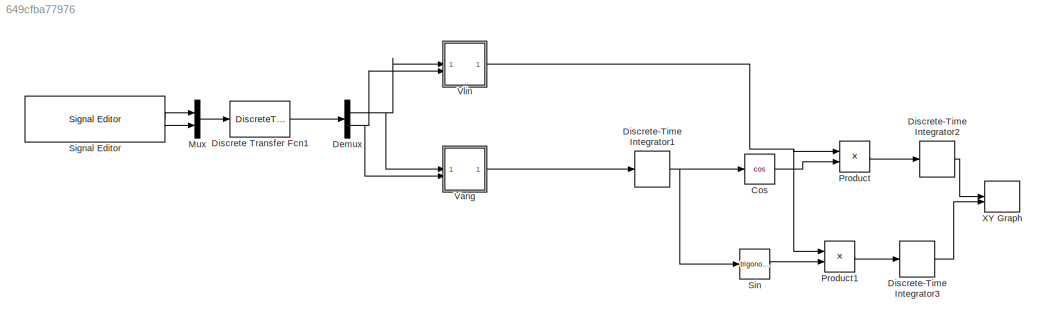
MODEL slx_649cfba77976
KIND model
CONFIG AbsTol = auto
CONFIG EnableMultiTasking = off
CONFIG FixedStep = auto
CONFIG MaxStep = auto
CONFIG MinStep = auto
CONFIG RelTol = 1e-3
CONFIG SampleTimeConstraint = Unconstrained
CONFIG SolverName = VariableStepAuto
CONFIG StartTime = 0.0
CONFIG StopTime = 18
BLOCK [Trigonometry] Cos
  Operator = cos
BLOCK [Demux] Demux
  Outputs = 2
BLOCK [DiscreteTransferFcn] Discrete Transfer Fcn1
  Denominator = Gz.den{1}
  InputPortMap = u0
  Numerator = Gz.num{1}
BLOCK [DiscreteIntegrator] Discrete-Time Integrator1
  ICPrevOutput = DiscIntNeverNeededParam
  ICPrevScaledInput = DiscIntNeverNeededParam
  InitialConditionSetting = Auto
  SampleTime = 0.025
BLOCK [DiscreteIntegrator] Discrete-Time Integrator2
  ICPrevOutput = DiscIntNeverNeededParam
  ICPrevScaledInput = DiscIntNeverNeededParam
  InitialConditionSetting = Auto
  SampleTime = 0.025
BLOCK [DiscreteIntegrator] Discrete-Time Integrator3
  ICPrevOutput = DiscIntNeverNeededParam
  ICPrevScaledInput = DiscIntNeverNeededParam
  InitialConditionSetting = Auto
  SampleTime = 0.025
BLOCK [Mux] Mux
  DisplayOption = bar
  Inputs = 2
BLOCK [Product] Product
BLOCK [Product] Product1
BLOCK [Reference] Signal Editor  REF=SignalEditorBlockLib/Signal Editor
  LibrarySourceBlock = simulink/Sources/Signal Editor
  SourceBlock = SignalEditorBlockLib/Signal Editor
  SourceType = SignalEditor
  UserDataPersistent = on
BLOCK [Trigonometry] Sin
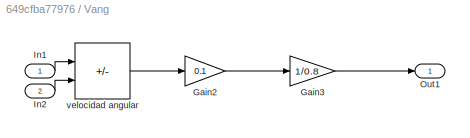
BLOCK [SubSystem] Vang
BLOCK [Gain] Vang/Gain2
  Gain = 0.1
BLOCK [Gain] Vang/Gain3
  Gain = 1/0.8
BLOCK [Inport] Vang/In1
BLOCK [Inport] Vang/In2
  Port = 2
BLOCK [Outport] Vang/Out1
BLOCK [Sum] Vang/velocidad angular
  IconShape = rectangular
  Inputs = |+-
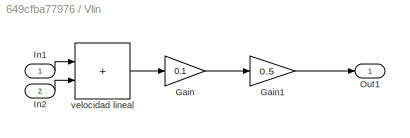
BLOCK [SubSystem] Vlin
BLOCK [Gain] Vlin/Gain
  Gain = 0.1
BLOCK [Gain] Vlin/Gain1
  Gain = 0.5
BLOCK [Inport] Vlin/In1
BLOCK [Inport] Vlin/In2
  Port = 2
BLOCK [Outport] Vlin/Out1
BLOCK [Sum] Vlin/velocidad lineal
  IconShape = rectangular
  Inputs = |++
BLOCK [Record] XY Graph
  CompatibilityTag = XY
  FileSettingsInternal = {"entries":[{"content":{"excelSettings":{"content":{},"type":"Streamout.ExcelSettings"}},"type":"Streamout.FileSettingStorage","uuid":""}],"packageUris":["http:\/\/schema.mathworks.com\/mf0\/streamout_blocks\/R2020a"],"version":"1.0"}
  Layout = [1 1]
  SignalsInternal = {"entries":[{"content":{"signals":[{"content":{"blockPath":[],"dimensions":[1],"domain":"","lineColor":"#ff6929","plots":[1],"port":1,"sid":[""],"signalID":356,"signalName":"Discrete-Time\nIntegrator2"},"type":"RecordBlkView.Signal","uuid":""},{"content":{"blockPath":[],"dimensions":[1],"domain":"","lineColor":"#b746ff","plots":[1],"port":2,"sid":[""],"signalID":360,"signalName":"Discrete-Time\nIn...<+198ch>
  VisualizationBindings = {"xyplotplugin":{"info":[{"series":[{"bindingParametersList":[{"parameter":"X-Axis","signalID":356,"signalName":"Discrete-Time\nIntegrator2"},{"parameter":"Y-Axis","signalID":360,"signalName":"Discrete-Time\nIntegrator3"}],"seriesID":61526}],"subplotID":1}]}}
LINE Cos:1 -> Product:2
NET Demux:1 -> Vang:1, Vlin:1
NET Demux:2 -> Vang:2, Vlin:2
LINE Discrete Transfer Fcn1:1 -> Demux:1
NET Discrete-Time Integrator1:1 -> Cos:1, Sin:1
LINE Discrete-Time Integrator2:1 -> XY Graph:1
LINE Discrete-Time Integrator3:1 -> XY Graph:2
LINE Mux:1 -> Discrete Transfer Fcn1:1
LINE Product1:1 -> Discrete-Time Integrator3:1
LINE Product:1 -> Discrete-Time Integrator2:1
LINE Signal Editor:1 -> Mux:1
LINE Signal Editor:2 -> Mux:2
LINE Sin:1 -> Product1:2
LINE Vang/Gain2:1 -> Vang/Gain3:1
LINE Vang/Gain3:1 -> Vang/Out1:1
LINE Vang/In1:1 -> Vang/velocidad angular:1
LINE Vang/In2:1 -> Vang/velocidad angular:2
LINE Vang/velocidad angular:1 -> Vang/Gain2:1
LINE Vang:1 -> Discrete-Time Integrator1:1
LINE Vlin/Gain1:1 -> Vlin/Out1:1
LINE Vlin/Gain:1 -> Vlin/Gain1:1
LINE Vlin/In1:1 -> Vlin/velocidad lineal:1
LINE Vlin/In2:1 -> Vlin/velocidad lineal:2
LINE Vlin/velocidad lineal:1 -> Vlin/Gain:1
NET Vlin:1 -> Product1:1, Product:1
note: NET lines group one-source signal fan-out (src -> all destinations, sorted); 1:1 wires keep LINE
